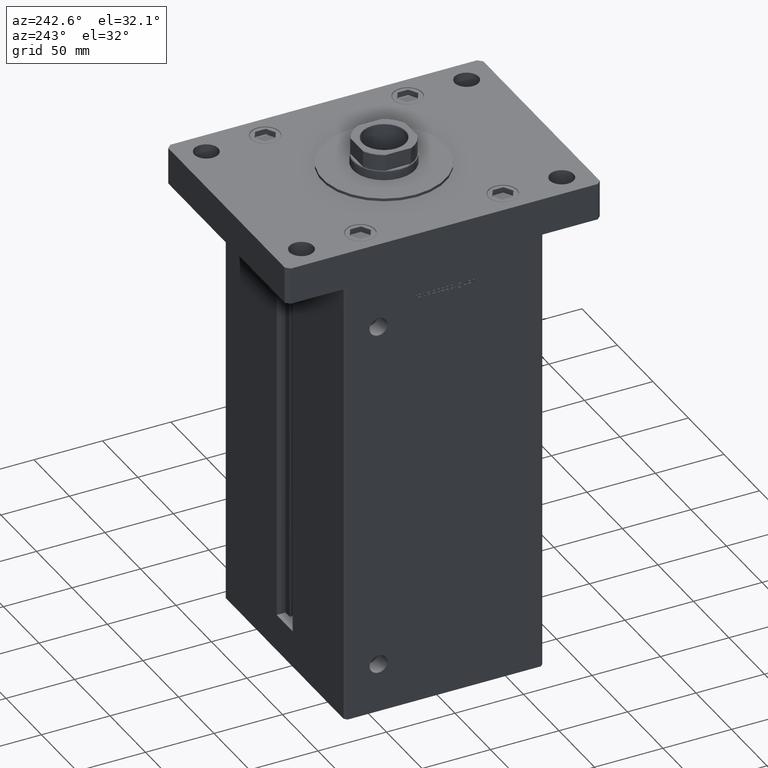
[diagram: clean part render]
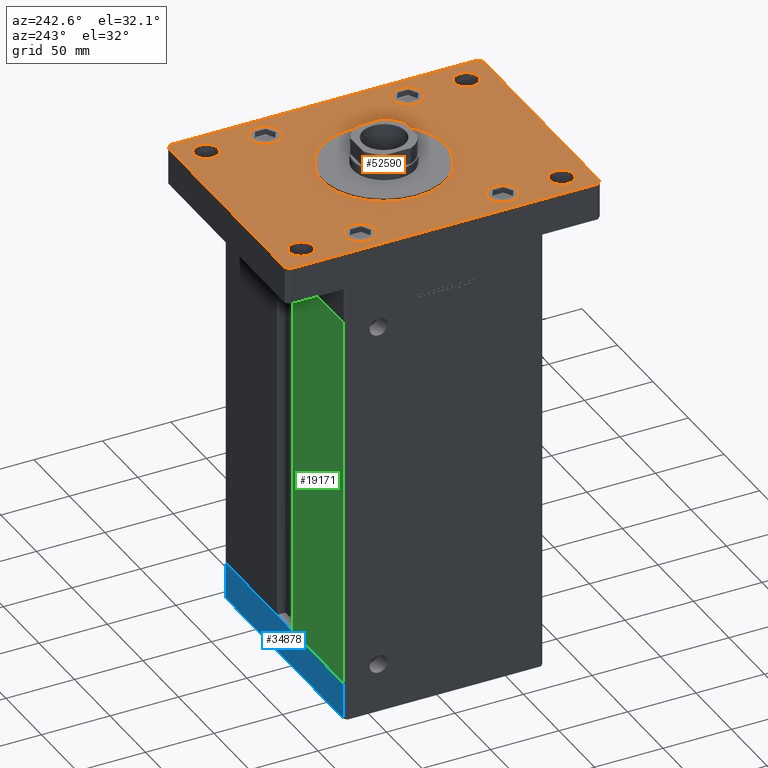
[diagram: same view with three faces highlighted in distinct colors, each labeled with its STEP entity id]
A machine part, auxiliary view with three faces highlighted in distinct colors.
Their STEP definitions:

[orange] entity #52590 — the highlighted planar face has unit normal (0, 0, 1).
#105 = DIRECTION ( 'NONE',  ( -0.7071067811865459074, -0.7071067811865491270, 0.000000000000000000 ) ) ;
#106 = ORIENTED_EDGE ( 'NONE', *, *, #12904, .T. ) ;
#183 = CARTESIAN_POINT ( 'NONE',  ( 75.74999999999998579, -95.00000000000001421, 27.00000000000000000 ) ) ;
#250 = CARTESIAN_POINT ( 'NONE',  ( 85.00000000000001421, -111.9999999999999005, 27.00000000000000000 ) ) ;
#767 = CIRCLE ( 'NONE', #21509, 8.750000000000007105 ) ;
#861 = CIRCLE ( 'NONE', #36302, 10.49999999999999467 ) ;
#958 = VERTEX_POINT ( 'NONE', #20628 ) ;
#1065 = CARTESIAN_POINT ( 'NONE',  ( 0.000000000000000000, 0.000000000000000000, 27.00000000000000000 ) ) ;
#1301 = DIRECTION ( 'NONE',  ( 1.000000000000000000, 0.000000000000000000, 0.000000000000000000 ) ) ;
#1304 = DIRECTION ( 'NONE',  ( 1.000000000000000000, 0.000000000000000000, 0.000000000000000000 ) ) ;
#1482 = EDGE_CURVE ( 'NONE', #34264, #4379, #6529, .T. ) ;
#1632 = FACE_BOUND ( 'NONE', #50620, .T. ) ;
#1698 = ORIENTED_EDGE ( 'NONE', *, *, #6924, .F. ) ;
#2162 = DIRECTION ( 'NONE',  ( 0.000000000000000000, 0.000000000000000000, 1.000000000000000000 ) ) ;
#2430 = FACE_BOUND ( 'NONE', #53263, .T. ) ;
#2926 = DIRECTION ( 'NONE',  ( 0.000000000000000000, 0.000000000000000000, 1.000000000000000000 ) ) ;
#3020 = ORIENTED_EDGE ( 'NONE', *, *, #20186, .T. ) ;
#3189 = CARTESIAN_POINT ( 'NONE',  ( -84.99999999999998579, -112.0000000000000142, 27.00000000000000000 ) ) ;
#3442 = DIRECTION ( 'NONE',  ( 0.000000000000000000, 0.000000000000000000, 1.000000000000000000 ) ) ;
#3480 = EDGE_CURVE ( 'NONE', #21643, #3791, #861, .T. ) ;
#3537 = DIRECTION ( 'NONE',  ( -1.000000000000000000, -1.692413147294444984E-16, 0.000000000000000000 ) ) ;
#3692 = CARTESIAN_POINT ( 'NONE',  ( 67.00000000000000000, 94.99999999999997158, 27.00000000000000000 ) ) ;
#3791 = VERTEX_POINT ( 'NONE', #4737 ) ;
#3807 = EDGE_CURVE ( 'NONE', #36804, #24426, #53202, .T. ) ;
#4369 = CARTESIAN_POINT ( 'NONE',  ( 85.00000000000001421, 112.0000000000000142, 27.00000000000000000 ) ) ;
#4379 = VERTEX_POINT ( 'NONE', #3189 ) ;
#4737 = CARTESIAN_POINT ( 'NONE',  ( 56.50000000000002132, 52.00000000000000000, 27.00000000000000000 ) ) ;
#5091 = EDGE_CURVE ( 'NONE', #27539, #8822, #32259, .T. ) ;
#5682 = VERTEX_POINT ( 'NONE', #34481 ) ;
#5694 = EDGE_CURVE ( 'NONE', #23676, #958, #20942, .T. ) ;
#5994 = DIRECTION ( 'NONE',  ( 0.000000000000000000, 0.000000000000000000, 1.000000000000000000 ) ) ;
#6210 = DIRECTION ( 'NONE',  ( 1.000000000000000000, 0.000000000000000000, 0.000000000000000000 ) ) ;
#6229 = FACE_BOUND ( 'NONE', #41055, .T. ) ;
#6529 = LINE ( 'NONE', #31444, #15525 ) ;
#6748 = DIRECTION ( 'NONE',  ( 1.000000000000000000, 0.000000000000000000, 0.000000000000000000 ) ) ;
#6898 = CIRCLE ( 'NONE', #45820, 45.00000000000000711 ) ;
#6900 = LINE ( 'NONE', #39934, #16312 ) ;
#6924 = EDGE_CURVE ( 'NONE', #36339, #34244, #14083, .T. ) ;
#7264 = EDGE_CURVE ( 'NONE', #40277, #10953, #20979, .T. ) ;
#7461 = EDGE_CURVE ( 'NONE', #41775, #48521, #11449, .T. ) ;
#7520 = AXIS2_PLACEMENT_3D ( 'NONE', #43836, #24076, #6748 ) ;
#7716 = EDGE_CURVE ( 'NONE', #15910, #38467, #12333, .T. ) ;
#7811 = CARTESIAN_POINT ( 'NONE',  ( 56.50000000000002132, -52.00000000000000000, 27.00000000000000000 ) ) ;
#8374 = DIRECTION ( 'NONE',  ( 1.000000000000000000, 0.000000000000000000, 0.000000000000000000 ) ) ;
#8402 = CARTESIAN_POINT ( 'NONE',  ( 82.00000000000002842, -114.9999999999999147, 27.00000000000000000 ) ) ;
#8676 = CARTESIAN_POINT ( 'NONE',  ( 82.00000000000004263, 115.0000000000000284, 27.00000000000000000 ) ) ;
#8815 = ORIENTED_EDGE ( 'NONE', *, *, #46484, .T. ) ;
#8822 = VERTEX_POINT ( 'NONE', #47287 ) ;
#8914 = CARTESIAN_POINT ( 'NONE',  ( -67.00000000000000000, 52.00000000000001421, 27.00000000000000000 ) ) ;
#9868 = AXIS2_PLACEMENT_3D ( 'NONE', #31256, #26403, #35321 ) ;
#10168 = AXIS2_PLACEMENT_3D ( 'NONE', #38413, #18384, #1304 ) ;
#10451 = DIRECTION ( 'NONE',  ( 0.000000000000000000, 0.000000000000000000, 1.000000000000000000 ) ) ;
#10819 = CARTESIAN_POINT ( 'NONE',  ( 85.00000000000001421, -111.9999999999999005, 27.00000000000000000 ) ) ;
#10837 = EDGE_CURVE ( 'NONE', #21159, #16740, #34968, .T. ) ;
#10953 = VERTEX_POINT ( 'NONE', #26068 ) ;
#11449 = CIRCLE ( 'NONE', #32213, 10.50000000000000178 ) ;
#11473 = ORIENTED_EDGE ( 'NONE', *, *, #3480, .F. ) ;
#11495 = DIRECTION ( 'NONE',  ( 1.000000000000000000, 0.000000000000000000, 0.000000000000000000 ) ) ;
#11856 = VERTEX_POINT ( 'NONE', #38835 ) ;
#11858 = DIRECTION ( 'NONE',  ( 1.000000000000000000, 0.000000000000000000, 0.000000000000000000 ) ) ;
#11917 = LINE ( 'NONE', #250, #40999 ) ;
#12159 = CIRCLE ( 'NONE', #13001, 8.750000000000007105 ) ;
#12333 = CIRCLE ( 'NONE', #23597, 8.750000000000007105 ) ;
#12489 = ORIENTED_EDGE ( 'NONE', *, *, #7716, .F. ) ;
#12683 = CARTESIAN_POINT ( 'NONE',  ( -66.99999999999997158, -95.00000000000001421, 27.00000000000000000 ) ) ;
#12904 = EDGE_CURVE ( 'NONE', #24426, #53439, #11917, .T. ) ;
#13001 = AXIS2_PLACEMENT_3D ( 'NONE', #23534, #28111, #11858 ) ;
#13829 = FACE_BOUND ( 'NONE', #19196, .T. ) ;
#14083 = CIRCLE ( 'NONE', #22721, 8.750000000000007105 ) ;
#14093 = FACE_BOUND ( 'NONE', #27818, .T. ) ;
#14210 = EDGE_CURVE ( 'NONE', #38467, #15910, #33177, .T. ) ;
#14340 = DIRECTION ( 'NONE',  ( 0.000000000000000000, 0.000000000000000000, 1.000000000000000000 ) ) ;
#14936 = AXIS2_PLACEMENT_3D ( 'NONE', #44255, #36664, #11495 ) ;
#15515 = ORIENTED_EDGE ( 'NONE', *, *, #50649, .F. ) ;
#15525 = VECTOR ( 'NONE', #27119, 1000.000000000000000 ) ;
#15910 = VERTEX_POINT ( 'NONE', #25784 ) ;
#15922 = CARTESIAN_POINT ( 'NONE',  ( 67.00000000000001421, -52.00000000000000000, 27.00000000000000000 ) ) ;
#16312 = VECTOR ( 'NONE', #37142, 1000.000000000000114 ) ;
#16384 = AXIS2_PLACEMENT_3D ( 'NONE', #30843, #2926, #18408 ) ;
#16448 = DIRECTION ( 'NONE',  ( 0.000000000000000000, 0.000000000000000000, 1.000000000000000000 ) ) ;
#16673 = CARTESIAN_POINT ( 'NONE',  ( 82.00000000000002842, -114.9999999999999147, 27.00000000000000000 ) ) ;
#16740 = VERTEX_POINT ( 'NONE', #44545 ) ;
#16898 = DIRECTION ( 'NONE',  ( 1.000000000000000000, 0.000000000000000000, 0.000000000000000000 ) ) ;
#17052 = DIRECTION ( 'NONE',  ( 1.000000000000000000, 0.000000000000000000, 0.000000000000000000 ) ) ;
#17100 = LINE ( 'NONE', #21712, #37041 ) ;
#17542 = EDGE_LOOP ( 'NONE', ( #38576, #18896 ) ) ;
#17714 = DIRECTION ( 'NONE',  ( 0.000000000000000000, 0.000000000000000000, 1.000000000000000000 ) ) ;
#18181 = FACE_BOUND ( 'NONE', #41237, .T. ) ;
#18384 = DIRECTION ( 'NONE',  ( 0.000000000000000000, 0.000000000000000000, 1.000000000000000000 ) ) ;
#18408 = DIRECTION ( 'NONE',  ( 1.000000000000000000, 0.000000000000000000, 0.000000000000000000 ) ) ;
#18654 = VECTOR ( 'NONE', #105, 1000.000000000000114 ) ;
#18701 = ORIENTED_EDGE ( 'NONE', *, *, #7461, .F. ) ;
#18896 = ORIENTED_EDGE ( 'NONE', *, *, #32718, .F. ) ;
#18966 = FACE_BOUND ( 'NONE', #17542, .T. ) ;
#18972 = DIRECTION ( 'NONE',  ( 0.000000000000000000, 0.000000000000000000, 1.000000000000000000 ) ) ;
#19009 = LINE ( 'NONE', #43094, #27660 ) ;
#19196 = EDGE_LOOP ( 'NONE', ( #19934, #11473 ) ) ;
#19299 = CARTESIAN_POINT ( 'NONE',  ( 58.24999999999996447, -95.00000000000001421, 27.00000000000000000 ) ) ;
#19934 = ORIENTED_EDGE ( 'NONE', *, *, #36211, .F. ) ;
#20186 = EDGE_CURVE ( 'NONE', #8822, #34264, #32088, .T. ) ;
#20542 = CARTESIAN_POINT ( 'NONE',  ( -58.24999999999997158, -95.00000000000001421, 27.00000000000000000 ) ) ;
#20558 = ORIENTED_EDGE ( 'NONE', *, *, #3807, .T. ) ;
#20628 = CARTESIAN_POINT ( 'NONE',  ( -77.50000000000000000, -52.00000000000000000, 27.00000000000000000 ) ) ;
#20699 = DIRECTION ( 'NONE',  ( 0.000000000000000000, 0.000000000000000000, 1.000000000000000000 ) ) ;
#20942 = CIRCLE ( 'NONE', #25260, 10.50000000000000178 ) ;
#20979 = CIRCLE ( 'NONE', #14936, 45.00000000000000711 ) ;
#21159 = VERTEX_POINT ( 'NONE', #46071 ) ;
#21509 = AXIS2_PLACEMENT_3D ( 'NONE', #48068, #10451, #35099 ) ;
#21643 = VERTEX_POINT ( 'NONE', #43011 ) ;
#21644 = DIRECTION ( 'NONE',  ( 0.000000000000000000, 0.000000000000000000, 1.000000000000000000 ) ) ;
#21712 = CARTESIAN_POINT ( 'NONE',  ( 85.00000000000001421, 112.0000000000000142, 27.00000000000000000 ) ) ;
#22721 = AXIS2_PLACEMENT_3D ( 'NONE', #12683, #21644, #1301 ) ;
#22765 = PLANE ( 'NONE',  #42456 ) ;
#22831 = AXIS2_PLACEMENT_3D ( 'NONE', #24266, #32923, #49436 ) ;
#23299 = CARTESIAN_POINT ( 'NONE',  ( -67.00000000000000000, 52.00000000000001421, 27.00000000000000000 ) ) ;
#23534 = CARTESIAN_POINT ( 'NONE',  ( -67.00000000000000000, 95.00000000000001421, 27.00000000000000000 ) ) ;
#23597 = AXIS2_PLACEMENT_3D ( 'NONE', #3692, #16448, #36469 ) ;
#23676 = VERTEX_POINT ( 'NONE', #40306 ) ;
#23683 = EDGE_CURVE ( 'NONE', #34244, #36339, #37763, .T. ) ;
#24076 = DIRECTION ( 'NONE',  ( 0.000000000000000000, 0.000000000000000000, 1.000000000000000000 ) ) ;
#24187 = CIRCLE ( 'NONE', #41445, 10.50000000000000178 ) ;
#24252 = VECTOR ( 'NONE', #33185, 1000.000000000000114 ) ;
#24266 = CARTESIAN_POINT ( 'NONE',  ( 67.00000000000000000, 94.99999999999997158, 27.00000000000000000 ) ) ;
#24426 = VERTEX_POINT ( 'NONE', #10819 ) ;
#24542 = CARTESIAN_POINT ( 'NONE',  ( -77.50000000000000000, 52.00000000000001421, 27.00000000000000000 ) ) ;
#24717 = EDGE_CURVE ( 'NONE', #11856, #41505, #30926, .T. ) ;
#24960 = ORIENTED_EDGE ( 'NONE', *, *, #50689, .F. ) ;
#25064 = ORIENTED_EDGE ( 'NONE', *, *, #23683, .F. ) ;
#25260 = AXIS2_PLACEMENT_3D ( 'NONE', #51262, #17714, #39072 ) ;
#25612 = ORIENTED_EDGE ( 'NONE', *, *, #24717, .F. ) ;
#25784 = CARTESIAN_POINT ( 'NONE',  ( 58.24999999999998579, 94.99999999999997158, 27.00000000000000000 ) ) ;
#26068 = CARTESIAN_POINT ( 'NONE',  ( 45.00000000000000711, 5.510910596163090344E-15, 27.00000000000000000 ) ) ;
#26403 = DIRECTION ( 'NONE',  ( 0.000000000000000000, 0.000000000000000000, 1.000000000000000000 ) ) ;
#27119 = DIRECTION ( 'NONE',  ( 1.239088197126290570E-16, -1.000000000000000000, 0.000000000000000000 ) ) ;
#27539 = VERTEX_POINT ( 'NONE', #51918 ) ;
#27617 = DIRECTION ( 'NONE',  ( 1.000000000000000000, 0.000000000000000000, 0.000000000000000000 ) ) ;
#27660 = VECTOR ( 'NONE', #35521, 1000.000000000000000 ) ;
#27818 = EDGE_LOOP ( 'NONE', ( #30484, #31746 ) ) ;
#28111 = DIRECTION ( 'NONE',  ( 0.000000000000000000, 0.000000000000000000, 1.000000000000000000 ) ) ;
#28707 = ORIENTED_EDGE ( 'NONE', *, *, #7264, .F. ) ;
#28899 = EDGE_LOOP ( 'NONE', ( #18701, #15515 ) ) ;
#29054 = EDGE_CURVE ( 'NONE', #41505, #11856, #29164, .T. ) ;
#29164 = CIRCLE ( 'NONE', #43972, 10.49999999999999467 ) ;
#30484 = ORIENTED_EDGE ( 'NONE', *, *, #51604, .F. ) ;
#30843 = CARTESIAN_POINT ( 'NONE',  ( 66.99999999999997158, -95.00000000000001421, 27.00000000000000000 ) ) ;
#30926 = CIRCLE ( 'NONE', #10168, 10.49999999999999467 ) ;
#31075 = EDGE_LOOP ( 'NONE', ( #28707, #24960 ) ) ;
#31256 = CARTESIAN_POINT ( 'NONE',  ( -67.00000000000000000, 95.00000000000001421, 27.00000000000000000 ) ) ;
#31444 = CARTESIAN_POINT ( 'NONE',  ( -85.00000000000001421, 112.0000000000000000, 27.00000000000000000 ) ) ;
#31746 = ORIENTED_EDGE ( 'NONE', *, *, #10837, .F. ) ;
#32088 = LINE ( 'NONE', #44784, #18654 ) ;
#32213 = AXIS2_PLACEMENT_3D ( 'NONE', #23299, #18972, #27617 ) ;
#32259 = LINE ( 'NONE', #8676, #43537 ) ;
#32498 = DIRECTION ( 'NONE',  ( 0.000000000000000000, 1.000000000000000000, 0.000000000000000000 ) ) ;
#32718 = EDGE_CURVE ( 'NONE', #33387, #45477, #767, .T. ) ;
#32842 = CIRCLE ( 'NONE', #35477, 10.50000000000000178 ) ;
#32923 = DIRECTION ( 'NONE',  ( 0.000000000000000000, 0.000000000000000000, 1.000000000000000000 ) ) ;
#33177 = CIRCLE ( 'NONE', #22831, 8.750000000000007105 ) ;
#33185 = DIRECTION ( 'NONE',  ( 0.7071067811865459074, 0.7071067811865491270, 0.000000000000000000 ) ) ;
#33387 = VERTEX_POINT ( 'NONE', #183 ) ;
#34118 = CARTESIAN_POINT ( 'NONE',  ( -75.74999999999998579, -95.00000000000001421, 27.00000000000000000 ) ) ;
#34244 = VERTEX_POINT ( 'NONE', #34118 ) ;
#34264 = VERTEX_POINT ( 'NONE', #50901 ) ;
#34481 = CARTESIAN_POINT ( 'NONE',  ( -81.99999999999998579, -115.0000000000000142, 27.00000000000000000 ) ) ;
#34716 = DIRECTION ( 'NONE',  ( 1.000000000000000000, 0.000000000000000000, 0.000000000000000000 ) ) ;
#34931 = CARTESIAN_POINT ( 'NONE',  ( 67.00000000000001421, 52.00000000000000000, 27.00000000000000000 ) ) ;
#34968 = CIRCLE ( 'NONE', #9868, 8.750000000000007105 ) ;
#35099 = DIRECTION ( 'NONE',  ( 1.000000000000000000, 0.000000000000000000, 0.000000000000000000 ) ) ;
#35321 = DIRECTION ( 'NONE',  ( 1.000000000000000000, 0.000000000000000000, 0.000000000000000000 ) ) ;
#35477 = AXIS2_PLACEMENT_3D ( 'NONE', #8914, #38168, #8374 ) ;
#35480 = DIRECTION ( 'NONE',  ( 1.000000000000000000, 0.000000000000000000, -0.000000000000000000 ) ) ;
#35521 = DIRECTION ( 'NONE',  ( 1.000000000000000000, 6.769652589177783879E-16, 0.000000000000000000 ) ) ;
#36211 = EDGE_CURVE ( 'NONE', #3791, #21643, #36285, .T. ) ;
#36285 = CIRCLE ( 'NONE', #43211, 10.49999999999999467 ) ;
#36302 = AXIS2_PLACEMENT_3D ( 'NONE', #45312, #20699, #16898 ) ;
#36339 = VERTEX_POINT ( 'NONE', #20542 ) ;
#36469 = DIRECTION ( 'NONE',  ( 1.000000000000000000, 0.000000000000000000, 0.000000000000000000 ) ) ;
#36479 = DIRECTION ( 'NONE',  ( 1.000000000000000000, 0.000000000000000000, 0.000000000000000000 ) ) ;
#36575 = ORIENTED_EDGE ( 'NONE', *, *, #14210, .F. ) ;
#36600 = ORIENTED_EDGE ( 'NONE', *, *, #47108, .T. ) ;
#36617 = CARTESIAN_POINT ( 'NONE',  ( -56.50000000000000000, 52.00000000000001421, 27.00000000000000000 ) ) ;
#36664 = DIRECTION ( 'NONE',  ( 0.000000000000000000, 0.000000000000000000, 1.000000000000000000 ) ) ;
#36804 = VERTEX_POINT ( 'NONE', #8402 ) ;
#37041 = VECTOR ( 'NONE', #38211, 1000.000000000000000 ) ;
#37142 = DIRECTION ( 'NONE',  ( 0.7071067811865474617, -0.7071067811865474617, 0.000000000000000000 ) ) ;
#37763 = CIRCLE ( 'NONE', #7520, 8.750000000000007105 ) ;
#38168 = DIRECTION ( 'NONE',  ( 0.000000000000000000, 0.000000000000000000, 1.000000000000000000 ) ) ;
#38211 = DIRECTION ( 'NONE',  ( -0.7071067811865426878, 0.7071067811865524577, 0.000000000000000000 ) ) ;
#38413 = CARTESIAN_POINT ( 'NONE',  ( 67.00000000000001421, -52.00000000000000000, 27.00000000000000000 ) ) ;
#38467 = VERTEX_POINT ( 'NONE', #39151 ) ;
#38576 = ORIENTED_EDGE ( 'NONE', *, *, #49780, .F. ) ;
#38740 = FACE_OUTER_BOUND ( 'NONE', #52109, .T. ) ;
#38835 = CARTESIAN_POINT ( 'NONE',  ( 77.50000000000001421, -52.00000000000000000, 27.00000000000000000 ) ) ;
#39072 = DIRECTION ( 'NONE',  ( 1.000000000000000000, 0.000000000000000000, 0.000000000000000000 ) ) ;
#39151 = CARTESIAN_POINT ( 'NONE',  ( 75.75000000000001421, 94.99999999999997158, 27.00000000000000000 ) ) ;
#39273 = CARTESIAN_POINT ( 'NONE',  ( 0.000000000000000000, 0.000000000000000000, 27.00000000000000000 ) ) ;
#39721 = CIRCLE ( 'NONE', #16384, 8.750000000000007105 ) ;
#39934 = CARTESIAN_POINT ( 'NONE',  ( -84.99999999999998579, -112.0000000000000142, 27.00000000000000000 ) ) ;
#40277 = VERTEX_POINT ( 'NONE', #42850 ) ;
#40306 = CARTESIAN_POINT ( 'NONE',  ( -56.50000000000000000, -52.00000000000000000, 27.00000000000000000 ) ) ;
#40999 = VECTOR ( 'NONE', #32498, 1000.000000000000000 ) ;
#41055 = EDGE_LOOP ( 'NONE', ( #25064, #1698 ) ) ;
#41237 = EDGE_LOOP ( 'NONE', ( #12489, #36575 ) ) ;
#41445 = AXIS2_PLACEMENT_3D ( 'NONE', #50698, #5994, #34716 ) ;
#41505 = VERTEX_POINT ( 'NONE', #7811 ) ;
#41717 = ORIENTED_EDGE ( 'NONE', *, *, #51215, .T. ) ;
#41775 = VERTEX_POINT ( 'NONE', #24542 ) ;
#42456 = AXIS2_PLACEMENT_3D ( 'NONE', #39273, #2162, #35480 ) ;
#42850 = CARTESIAN_POINT ( 'NONE',  ( -45.00000000000000711, 0.000000000000000000, 27.00000000000000000 ) ) ;
#43011 = CARTESIAN_POINT ( 'NONE',  ( 77.50000000000001421, 52.00000000000000000, 27.00000000000000000 ) ) ;
#43094 = CARTESIAN_POINT ( 'NONE',  ( -81.99999999999998579, -115.0000000000000142, 27.00000000000000000 ) ) ;
#43211 = AXIS2_PLACEMENT_3D ( 'NONE', #34931, #14340, #6210 ) ;
#43537 = VECTOR ( 'NONE', #3537, 1000.000000000000000 ) ;
#43836 = CARTESIAN_POINT ( 'NONE',  ( -66.99999999999997158, -95.00000000000001421, 27.00000000000000000 ) ) ;
#43972 = AXIS2_PLACEMENT_3D ( 'NONE', #15922, #3442, #36479 ) ;
#44255 = CARTESIAN_POINT ( 'NONE',  ( 0.000000000000000000, 0.000000000000000000, 27.00000000000000000 ) ) ;
#44517 = ORIENTED_EDGE ( 'NONE', *, *, #5694, .F. ) ;
#44524 = ORIENTED_EDGE ( 'NONE', *, *, #1482, .T. ) ;
#44545 = CARTESIAN_POINT ( 'NONE',  ( -75.75000000000001421, 95.00000000000001421, 27.00000000000000000 ) ) ;
#44784 = CARTESIAN_POINT ( 'NONE',  ( -82.00000000000002842, 115.0000000000000000, 27.00000000000000000 ) ) ;
#45312 = CARTESIAN_POINT ( 'NONE',  ( 67.00000000000001421, 52.00000000000000000, 27.00000000000000000 ) ) ;
#45469 = DIRECTION ( 'NONE',  ( 0.000000000000000000, 0.000000000000000000, 1.000000000000000000 ) ) ;
#45477 = VERTEX_POINT ( 'NONE', #19299 ) ;
#45611 = ORIENTED_EDGE ( 'NONE', *, *, #49408, .F. ) ;
#45820 = AXIS2_PLACEMENT_3D ( 'NONE', #1065, #45469, #17052 ) ;
#46071 = CARTESIAN_POINT ( 'NONE',  ( -58.24999999999999289, 95.00000000000001421, 27.00000000000000000 ) ) ;
#46484 = EDGE_CURVE ( 'NONE', #53439, #27539, #17100, .T. ) ;
#46634 = ORIENTED_EDGE ( 'NONE', *, *, #5091, .T. ) ;
#46863 = FACE_BOUND ( 'NONE', #31075, .T. ) ;
#47108 = EDGE_CURVE ( 'NONE', #4379, #5682, #6900, .T. ) ;
#47287 = CARTESIAN_POINT ( 'NONE',  ( -82.00000000000002842, 115.0000000000000000, 27.00000000000000000 ) ) ;
#48068 = CARTESIAN_POINT ( 'NONE',  ( 66.99999999999997158, -95.00000000000001421, 27.00000000000000000 ) ) ;
#48521 = VERTEX_POINT ( 'NONE', #36617 ) ;
#49408 = EDGE_CURVE ( 'NONE', #958, #23676, #24187, .T. ) ;
#49436 = DIRECTION ( 'NONE',  ( 1.000000000000000000, 0.000000000000000000, 0.000000000000000000 ) ) ;
#49780 = EDGE_CURVE ( 'NONE', #45477, #33387, #39721, .T. ) ;
#50620 = EDGE_LOOP ( 'NONE', ( #53201, #25612 ) ) ;
#50649 = EDGE_CURVE ( 'NONE', #48521, #41775, #32842, .T. ) ;
#50689 = EDGE_CURVE ( 'NONE', #10953, #40277, #6898, .T. ) ;
#50698 = CARTESIAN_POINT ( 'NONE',  ( -67.00000000000000000, -52.00000000000000000, 27.00000000000000000 ) ) ;
#50901 = CARTESIAN_POINT ( 'NONE',  ( -85.00000000000001421, 112.0000000000000000, 27.00000000000000000 ) ) ;
#51199 = FACE_BOUND ( 'NONE', #28899, .T. ) ;
#51215 = EDGE_CURVE ( 'NONE', #5682, #36804, #19009, .T. ) ;
#51262 = CARTESIAN_POINT ( 'NONE',  ( -67.00000000000000000, -52.00000000000000000, 27.00000000000000000 ) ) ;
#51604 = EDGE_CURVE ( 'NONE', #16740, #21159, #12159, .T. ) ;
#51918 = CARTESIAN_POINT ( 'NONE',  ( 82.00000000000004263, 115.0000000000000284, 27.00000000000000000 ) ) ;
#52109 = EDGE_LOOP ( 'NONE', ( #41717, #20558, #106, #8815, #46634, #3020, #44524, #36600 ) ) ;
#52590 = ADVANCED_FACE ( 'NONE', ( #46863, #51199, #1632, #14093, #6229, #38740, #18181, #2430, #13829, #18966 ), #22765, .T. ) ;
#53201 = ORIENTED_EDGE ( 'NONE', *, *, #29054, .F. ) ;
#53202 = LINE ( 'NONE', #16673, #24252 ) ;
#53263 = EDGE_LOOP ( 'NONE', ( #45611, #44517 ) ) ;
#53439 = VERTEX_POINT ( 'NONE', #4369 ) ;

[blue] entity #34878 — the highlighted planar face has unit normal (0, 1, 0).
#890 = FACE_OUTER_BOUND ( 'NONE', #27368, .T. ) ;
#4413 = ORIENTED_EDGE ( 'NONE', *, *, #22302, .T. ) ;
#4809 = DIRECTION ( 'NONE',  ( -1.000000000000000000, -2.508033941171287983E-16, 0.000000000000000000 ) ) ;
#9142 = LINE ( 'NONE', #13476, #33554 ) ;
#13476 = CARTESIAN_POINT ( 'NONE',  ( 82.99999999999992895, 72.50000000000002842, -27.00000000000000000 ) ) ;
#13499 = DIRECTION ( 'NONE',  ( -1.000000000000000000, -2.508033941171287983E-16, 0.000000000000000000 ) ) ;
#14564 = VECTOR ( 'NONE', #13499, 1000.000000000000000 ) ;
#15031 = CARTESIAN_POINT ( 'NONE',  ( 82.99999999999992895, 72.50000000000002842, -27.00000000000000000 ) ) ;
#15056 = CARTESIAN_POINT ( 'NONE',  ( -83.00000000000001421, 72.49999999999998579, 0.000000000000000000 ) ) ;
#16786 = EDGE_CURVE ( 'NONE', #45985, #53080, #43750, .T. ) ;
#17956 = CARTESIAN_POINT ( 'NONE',  ( -83.00000000000001421, 72.49999999999998579, -27.00000000000000000 ) ) ;
#20094 = ORIENTED_EDGE ( 'NONE', *, *, #46679, .F. ) ;
#20203 = CARTESIAN_POINT ( 'NONE',  ( 82.99999999999992895, 72.50000000000002842, -27.00000000000000000 ) ) ;
#22284 = DIRECTION ( 'NONE',  ( -2.508033941171287983E-16, 1.000000000000000000, 0.000000000000000000 ) ) ;
#22302 = EDGE_CURVE ( 'NONE', #42393, #50022, #22550, .T. ) ;
#22550 = LINE ( 'NONE', #17956, #48079 ) ;
#24184 = ORIENTED_EDGE ( 'NONE', *, *, #26541, .T. ) ;
#25422 = CARTESIAN_POINT ( 'NONE',  ( 82.99999999999992895, 72.50000000000002842, 0.000000000000000000 ) ) ;
#25533 = CARTESIAN_POINT ( 'NONE',  ( 82.99999999999992895, 72.50000000000002842, -27.00000000000000000 ) ) ;
#26541 = EDGE_CURVE ( 'NONE', #45985, #42393, #9142, .T. ) ;
#27368 = EDGE_LOOP ( 'NONE', ( #20094, #50926, #24184, #4413 ) ) ;
#28906 = VECTOR ( 'NONE', #31578, 1000.000000000000000 ) ;
#29336 = CARTESIAN_POINT ( 'NONE',  ( -83.00000000000001421, 72.49999999999998579, -27.00000000000000000 ) ) ;
#31578 = DIRECTION ( 'NONE',  ( 0.000000000000000000, 0.000000000000000000, 1.000000000000000000 ) ) ;
#33554 = VECTOR ( 'NONE', #4809, 1000.000000000000000 ) ;
#33822 = LINE ( 'NONE', #25422, #14564 ) ;
#34878 = ADVANCED_FACE ( 'NONE', ( #890 ), #42839, .T. ) ;
#34997 = DIRECTION ( 'NONE',  ( 0.000000000000000000, 0.000000000000000000, 1.000000000000000000 ) ) ;
#42393 = VERTEX_POINT ( 'NONE', #29336 ) ;
#42839 = PLANE ( 'NONE',  #43168 ) ;
#43168 = AXIS2_PLACEMENT_3D ( 'NONE', #25533, #22284, #51511 ) ;
#43750 = LINE ( 'NONE', #20203, #28906 ) ;
#45985 = VERTEX_POINT ( 'NONE', #15031 ) ;
#46679 = EDGE_CURVE ( 'NONE', #53080, #50022, #33822, .T. ) ;
#48079 = VECTOR ( 'NONE', #34997, 1000.000000000000000 ) ;
#50022 = VERTEX_POINT ( 'NONE', #15056 ) ;
#50478 = CARTESIAN_POINT ( 'NONE',  ( 82.99999999999992895, 72.50000000000002842, 0.000000000000000000 ) ) ;
#50926 = ORIENTED_EDGE ( 'NONE', *, *, #16786, .F. ) ;
#51511 = DIRECTION ( 'NONE',  ( -1.000000000000000000, -2.508033941171287983E-16, 0.000000000000000000 ) ) ;
#53080 = VERTEX_POINT ( 'NONE', #50478 ) ;

[green] entity #19171 — the highlighted planar face has unit normal (0, -1, 0).
#771 = DIRECTION ( 'NONE',  ( -0.000000000000000000, -0.000000000000000000, -1.000000000000000000 ) ) ;
#1156 = DIRECTION ( 'NONE',  ( -1.000000000000000000, 0.000000000000000000, 0.000000000000000000 ) ) ;
#1695 = CARTESIAN_POINT ( 'NONE',  ( -11.25000000000000178, 72.49999999999998579, 0.000000000000000000 ) ) ;
#2936 = VECTOR ( 'NONE', #43088, 1000.000000000000000 ) ;
#4077 = ORIENTED_EDGE ( 'NONE', *, *, #36683, .T. ) ;
#4563 = LINE ( 'NONE', #9160, #4945 ) ;
#4945 = VECTOR ( 'NONE', #771, 1000.000000000000000 ) ;
#8076 = FACE_OUTER_BOUND ( 'NONE', #21295, .T. ) ;
#9160 = CARTESIAN_POINT ( 'NONE',  ( -83.00000000000001421, 72.49999999999998579, 276.0000000000000000 ) ) ;
#10058 = CARTESIAN_POINT ( 'NONE',  ( -11.25000000000000178, 72.49999999999998579, 276.0000000000000000 ) ) ;
#10283 = EDGE_CURVE ( 'NONE', #18089, #40333, #14128, .T. ) ;
#13062 = VERTEX_POINT ( 'NONE', #17609 ) ;
#13646 = VECTOR ( 'NONE', #49770, 1000.000000000000000 ) ;
#14128 = LINE ( 'NONE', #10058, #2936 ) ;
#16996 = VERTEX_POINT ( 'NONE', #47244 ) ;
#17561 = DIRECTION ( 'NONE',  ( 0.000000000000000000, -1.000000000000000000, 0.000000000000000000 ) ) ;
#17609 = CARTESIAN_POINT ( 'NONE',  ( -83.00000000000001421, 72.49999999999998579, 0.000000000000000000 ) ) ;
#17658 = ORIENTED_EDGE ( 'NONE', *, *, #26455, .F. ) ;
#18089 = VERTEX_POINT ( 'NONE', #48758 ) ;
#18189 = VECTOR ( 'NONE', #1156, 1000.000000000000000 ) ;
#19171 = ADVANCED_FACE ( 'NONE', ( #8076 ), #24604, .F. ) ;
#20548 = DIRECTION ( 'NONE',  ( 0.000000000000000000, -0.000000000000000000, -1.000000000000000000 ) ) ;
#21295 = EDGE_LOOP ( 'NONE', ( #29590, #17658, #4077, #26032 ) ) ;
#24529 = EDGE_CURVE ( 'NONE', #18089, #13062, #4563, .T. ) ;
#24604 = PLANE ( 'NONE',  #26419 ) ;
#26032 = ORIENTED_EDGE ( 'NONE', *, *, #24529, .F. ) ;
#26419 = AXIS2_PLACEMENT_3D ( 'NONE', #29725, #17561, #20548 ) ;
#26455 = EDGE_CURVE ( 'NONE', #16996, #40333, #36770, .T. ) ;
#28375 = CARTESIAN_POINT ( 'NONE',  ( -11.25000000000000178, 72.49999999999998579, 0.000000000000000000 ) ) ;
#29590 = ORIENTED_EDGE ( 'NONE', *, *, #10283, .T. ) ;
#29725 = CARTESIAN_POINT ( 'NONE',  ( -11.25000000000000178, 72.49999999999998579, 276.0000000000000000 ) ) ;
#36683 = EDGE_CURVE ( 'NONE', #16996, #13062, #46374, .T. ) ;
#36770 = LINE ( 'NONE', #28375, #13646 ) ;
#40333 = VERTEX_POINT ( 'NONE', #42579 ) ;
#42579 = CARTESIAN_POINT ( 'NONE',  ( -11.25000000000000178, 72.49999999999998579, 276.0000000000000000 ) ) ;
#43088 = DIRECTION ( 'NONE',  ( 1.000000000000000000, 0.000000000000000000, 0.000000000000000000 ) ) ;
#46374 = LINE ( 'NONE', #1695, #18189 ) ;
#47244 = CARTESIAN_POINT ( 'NONE',  ( -11.25000000000000178, 72.49999999999998579, 0.000000000000000000 ) ) ;
#48758 = CARTESIAN_POINT ( 'NONE',  ( -83.00000000000001421, 72.49999999999998579, 276.0000000000000000 ) ) ;
#49770 = DIRECTION ( 'NONE',  ( -0.000000000000000000, -0.000000000000000000, 1.000000000000000000 ) ) ;